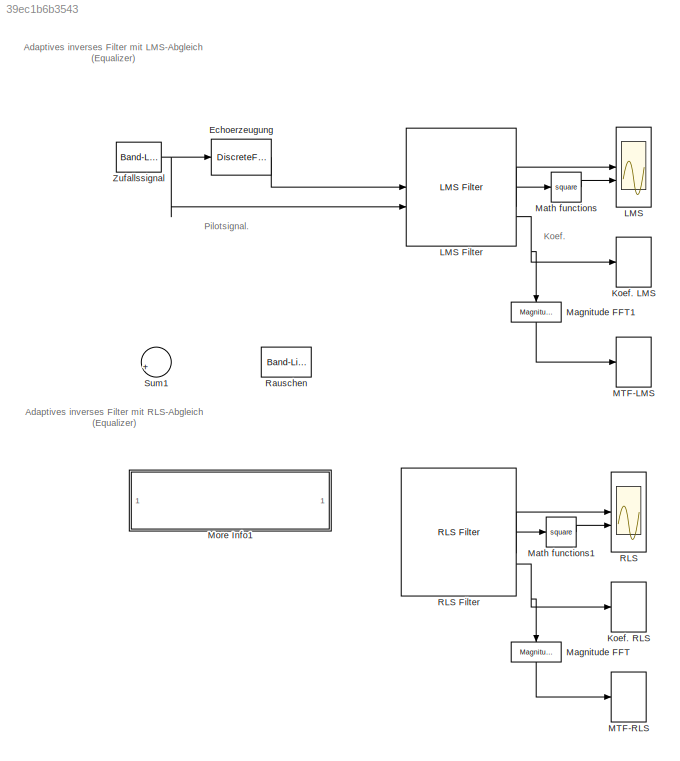
MODEL slx_39ec1b6b3543
KIND model
CONFIG AbsTol = auto
CONFIG EnableMultiTasking = on
CONFIG FixedStep = auto
CONFIG MaxStep = auto
CONFIG MinStep = auto
CONFIG RelTol = 1e-3
CONFIG SampleTimeConstraint = Unconstrained
CONFIG SolverName = ode45
CONFIG StartTime = 0.0
CONFIG StopTime = 10000.0
BLOCK [DiscreteFilter] Echoerzeugung
  Denominator = [1 ]
  InputPortMap = u0
  NameLocation = top
  Numerator = [1  0 0 0.8]
  SampleTime = 1
BLOCK [ArrayPlot] Koef. LMS
  AxesScaling = Manual
  DefaultConfigurationName = dsp.scopes.ArrayPlotBlockSpecification
  GraphicalSettings = {"Style":{"BackgroundColor":[0.1568627450980392,0.1568627450980392,0.1568627450980392],"AxesColor":[0,0,0],"LabelsColor":[0.6862745098039216,0.6862745098039216,0.6862745098039216],"LineStyle":["-"],"LineColor":[[1,1,0.06666666666666667]],"LineWidth":[1.5],"Marker":["o"],"FontSize":"small"}}  <repeated x4 — deduplicated; at blocks: Koef. LMS, Koef. RLS, MTF-LMS, MTF-RLS>
  MultipleDisplayCache = {"PlotAsMagnitudePhase":[false],"ShowGrid":[true],"ShowLegend":[false],"Title":[""],"XLabel":["Index"],"YLabel":["LMS-Koeffizienten"],"YLimits":["[-10,10]"]}
  ScopeFrameLocation = window
  WasSavedAsWebScope = on
  WindowPosition = [285.000000,21.000000,800.000000,500.000000,]
  XLabel = Index
  YLabel = LMS-Koeffizienten
BLOCK [ArrayPlot] Koef. RLS
  AxesScaling = Manual
  DefaultConfigurationName = dsp.scopes.ArrayPlotBlockSpecification
  MultipleDisplayCache = {"PlotAsMagnitudePhase":[false],"ShowGrid":[true],"ShowLegend":[false],"Title":[""],"XLabel":["Index"],"YLabel":["RLS-Koeffizienten"],"YLimits":["[-10,10]"]}
  ScopeFrameLocation = window
  WasSavedAsWebScope = on
  WindowPosition = [240.000000,110.000000,800.000000,500.000000,]
  XLabel = Index
  YLabel = RLS-Koeffizienten
BLOCK [Scope] LMS
  AttributesFormatString = test
  Floating = off
  NumInputPorts = 2
  ScopeSpecificationString = Simulink.scopes.TimeScopeBlockCfg('CurrentConfiguration', extmgr.ConfigurationSet(extmgr.Configuration('Core','General UI',true),extmgr.Configuration('Core','Source UI',true),extmgr.Configuration('Sources','WiredSimulink',true,'DataLoggingVariableName','ScopeData1','DataLoggingSaveFormat','StructureWithTime','DataLoggingDecimation','1','DataLoggingDecimateData',true),extmgr.Configuration('Visuals'...<+2500ch>
BLOCK [Reference] LMS Filter  REF=dspadpt3/LMS Filter
  SourceBlock = dspadpt3/LMS Filter
  SourceType = LMS Filter
BLOCK [ArrayPlot] MTF-LMS
  AxesScaling = Manual
  DefaultConfigurationName = dsp.scopes.ArrayPlotBlockSpecification
  MultipleDisplayCache = {"PlotAsMagnitudePhase":[false],"ShowGrid":[true],"ShowLegend":[false],"Title":[""],"XLabel":["Frequenzzahl"],"YLabel":["LMS-Amplitudengang"],"YLimits":["[-10,10]"]}
  ScopeFrameLocation = window
  WasSavedAsWebScope = on
  WindowPosition = [153.000000,27.000000,801.000000,500.000000,]
  XLabel = Frequenzzahl
  YLabel = LMS-Amplitudengang
BLOCK [ArrayPlot] MTF-RLS
  AxesScaling = Manual
  DefaultConfigurationName = dsp.scopes.ArrayPlotBlockSpecification
  MultipleDisplayCache = {"PlotAsMagnitudePhase":[false],"ShowGrid":[true],"ShowLegend":[false],"Title":[""],"XLabel":["Frequenzzahl"],"YLabel":["RLS-Amplitudengang"],"YLimits":["[-10,10]"]}
  ScopeFrameLocation = window
  WasSavedAsWebScope = on
  WindowPosition = [240.000000,110.000000,800.000000,500.000000,]
  XLabel = Frequenzzahl
  YLabel = RLS-Amplitudengang
BLOCK [Reference] Magnitude FFT  REF=dspspect3/Magnitude
FFT
  NameLocation = left
  SourceBlock = dspspect3/Magnitude\nFFT
  SourceType = Magnitude FFT
BLOCK [Reference] Magnitude FFT1  REF=dspspect3/Magnitude
FFT
  NameLocation = left
  SourceBlock = dspspect3/Magnitude\nFFT
  SourceType = Magnitude FFT
BLOCK [Math] Math functions
  Operator = square
  SignedPower = on
BLOCK [Math] Math functions1
  Operator = square
  SignedPower = on
BLOCK [SubSystem] More Info1
BLOCK [Scope] RLS
  Floating = off
  NumInputPorts = 2
  ScopeSpecificationString = C++SS(StrPVP('Location','[1085, 472, 1653, 767]'),StrPVP('Open','off'),MxPVP('AxesTitles',54,'struct(''axes1'',''%<SignalLabel>'',''axes2'',''%<SignalLabel>'')'),StrPVP('TimeRange','400'),StrPVP('YMin','-5~13.73684210526316'),StrPVP('YMax','5~25.73684210526316'),StrPVP('DataFormat','StructureWithTime'),StrPVP('LimitDataPoints','off'),StrPVP('BlockParamSampleTime','0'),StrPVP('Decimation','1'),StrP...<+34ch>
BLOCK [Reference] RLS Filter  REF=dspadpt3/RLS Filter
  SourceBlock = dspadpt3/RLS Filter
  SourceType = RLS filter
BLOCK [Reference] Rauschen  REF=simulink/Sources/Band-Limited
White Noise
  NameLocation = left
  SourceBlock = simulink/Sources/Band-Limited\nWhite Noise
  SourceType = Band-Limited White Noise.
BLOCK [Sum] Sum1
  InputSameDT = on
  Inputs = |++
  NameLocation = top
  OutDataTypeStr = Inherit: Same as first input
  SaturateOnIntegerOverflow = on
BLOCK [Reference] Zufallssignal  REF=simulink/Sources/Band-Limited
White Noise
  SourceBlock = simulink/Sources/Band-Limited\nWhite Noise
  SourceType = Band-Limited White Noise.
ANNOTATION (root): Adaptives inverses Filter mit LMS-Abgleich (Equalizer)
ANNOTATION (root): Adaptives inverses Filter mit RLS-Abgleich (Equalizer)
ANNOTATION (root): Koef.
ANNOTATION (root): Pilotsignal.
ANNOTATION More Info1: Adaptives Inverses System (== Entzerrer == Equalizer) =========================================== (c) HSM, B. Wir 7.11 97, 8.8.2012 Starten Sie die Simulation mit SIMULATION, START. Beobachten Sie wie sich die Koeffizienten des Filters langsam einstellen. Durch einen Doppelklick auf das Oszilloskop können Sie die Signale beobachten. Mit der rechten Maustate können Sie AUTOSCALE aktivieren. (i) Ste...<+368ch>
LINE Echoerzeugung:1 -> LMS Filter:1
LINE LMS Filter:1 -> LMS:1
LINE LMS Filter:2 -> Math functions:1
NET LMS Filter:3 -> Koef. LMS:1, Magnitude FFT1:1
LINE Magnitude FFT1:1 -> MTF-LMS:1
LINE Magnitude FFT:1 -> MTF-RLS:1
LINE Math functions1:1 -> RLS:2
LINE Math functions:1 -> LMS:2
LINE RLS Filter:1 -> RLS:1
LINE RLS Filter:2 -> Math functions1:1
NET RLS Filter:3 -> Koef. RLS:1, Magnitude FFT:1
NET Zufallssignal:1 -> Echoerzeugung:1, LMS Filter:2
note: NET lines group one-source signal fan-out (src -> all destinations, sorted); 1:1 wires keep LINE
